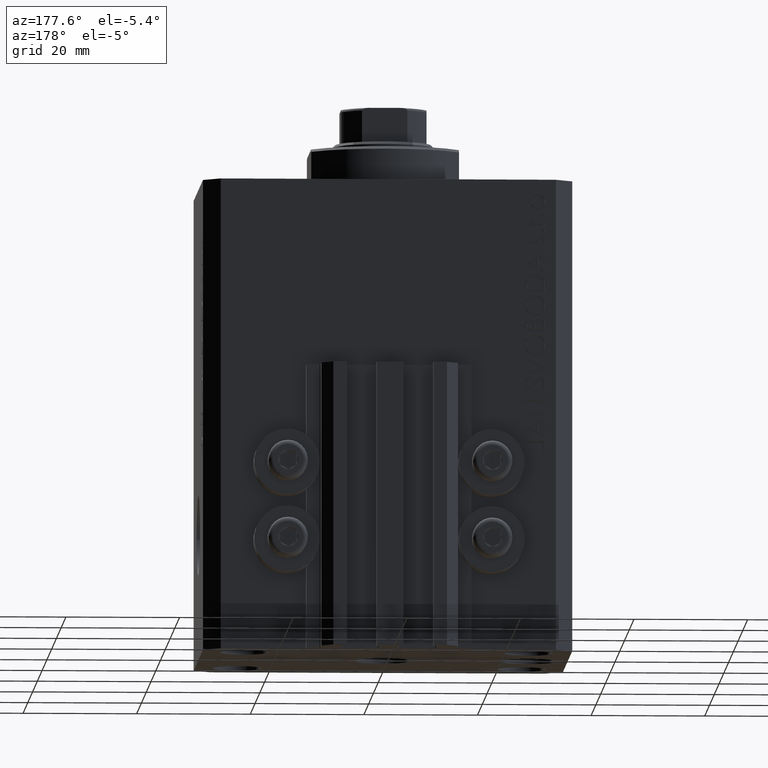
[diagram: clean part render]
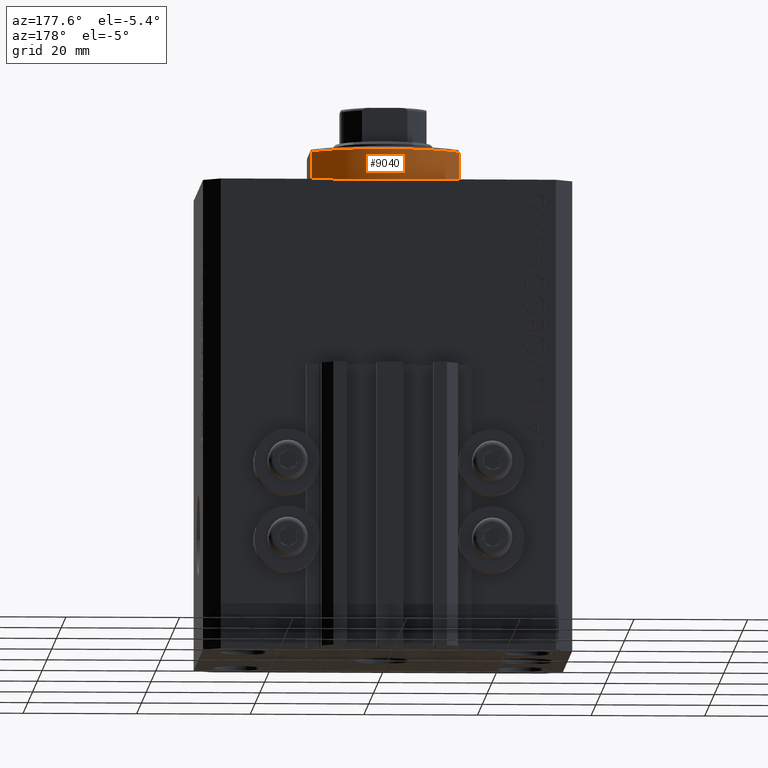
[diagram: same view with one face highlighted and labeled with its STEP entity id]
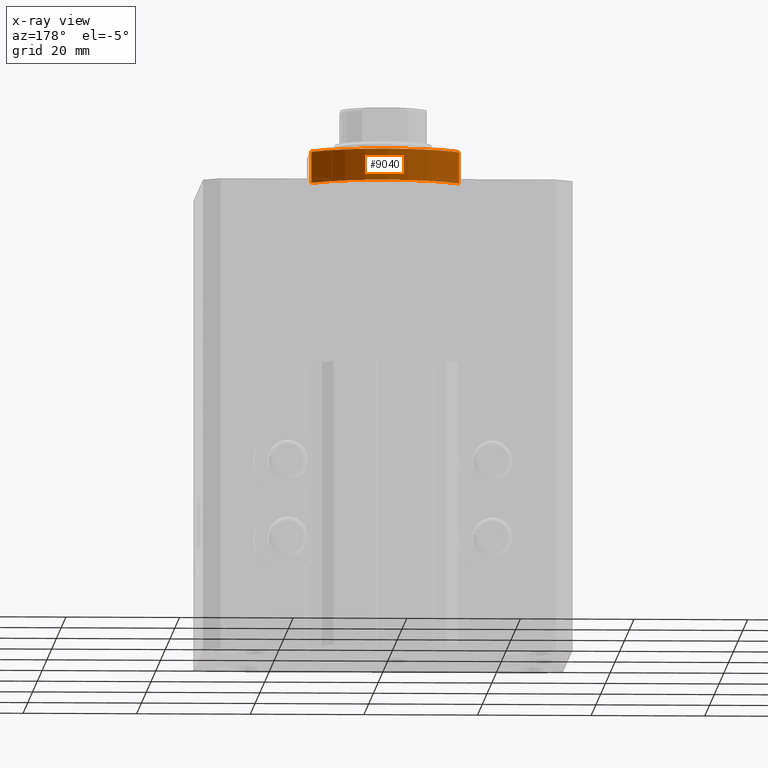
[diagram: x-ray of the same camera — body ghosted, the highlighted face saturated]
A machine part, auxiliary view. The second image highlights one B-rep face of the part: STEP entity #9040.
The next image is the same camera in x-ray: the body ghosted, the highlighted face saturated — about 0% of this face is hidden behind the body in this view.
In plain terms, the highlighted cylindrical surface (partial cylindrical patch) has radius 16 mm, axis along (0, 0, -1).
Its self-contained STEP definition (entity closure, byte-faithful):
#849 = VERTEX_POINT ( 'NONE', #37291 ) ;
#4982 = VECTOR ( 'NONE', #21790, 1000.000000000000000 ) ;
#5190 = CARTESIAN_POINT ( 'NONE',  ( 13.00000000000000000, 9.327379053088916905, -6.000000000000014211 ) ) ;
#5403 = DIRECTION ( 'NONE',  ( 0.000000000000000000, 0.000000000000000000, 1.000000000000000000 ) ) ;
#5992 = LINE ( 'NONE', #21317, #23861 ) ;
#7274 = ORIENTED_EDGE ( 'NONE', *, *, #43441, .T. ) ;
#9040 = ADVANCED_FACE ( 'NONE', ( #47244 ), #13880, .T. ) ;
#10523 = DIRECTION ( 'NONE',  ( -0.000000000000000000, -0.000000000000000000, 1.000000000000000000 ) ) ;
#13880 = CYLINDRICAL_SURFACE ( 'NONE', #25500, 16.00000000000000000 ) ;
#14584 = CIRCLE ( 'NONE', #28404, 16.00000000000000000 ) ;
#18256 = EDGE_CURVE ( 'NONE', #849, #37709, #14584, .T. ) ;
#18591 = EDGE_CURVE ( 'NONE', #23240, #849, #5992, .T. ) ;
#21317 = CARTESIAN_POINT ( 'NONE',  ( -13.00000000000000000, 9.327379053088813876, -6.500000000000000000 ) ) ;
#21555 = DIRECTION ( 'NONE',  ( -0.000000000000000000, -0.000000000000000000, 1.000000000000000000 ) ) ;
#21790 = DIRECTION ( 'NONE',  ( -0.000000000000000000, -0.000000000000000000, 1.000000000000000000 ) ) ;
#23240 = VERTEX_POINT ( 'NONE', #46406 ) ;
#23569 = CARTESIAN_POINT ( 'NONE',  ( 0.000000000000000000, 0.000000000000000000, -0.4999999999999995559 ) ) ;
#23637 = CARTESIAN_POINT ( 'NONE',  ( 13.00000000000000000, 9.327379053088815652, -0.4999999999999995559 ) ) ;
#23861 = VECTOR ( 'NONE', #10523, 1000.000000000000000 ) ;
#24096 = CARTESIAN_POINT ( 'NONE',  ( 0.000000000000000000, 0.000000000000000000, -6.000000000000023981 ) ) ;
#24925 = DIRECTION ( 'NONE',  ( 1.000000000000000000, 0.000000000000000000, 0.000000000000000000 ) ) ;
#25500 = AXIS2_PLACEMENT_3D ( 'NONE', #36213, #21555, #24925 ) ;
#27467 = AXIS2_PLACEMENT_3D ( 'NONE', #24096, #5403, #41882 ) ;
#28404 = AXIS2_PLACEMENT_3D ( 'NONE', #23569, #35095, #38226 ) ;
#31076 = EDGE_CURVE ( 'NONE', #32097, #37709, #43651, .T. ) ;
#32097 = VERTEX_POINT ( 'NONE', #5190 ) ;
#32291 = ORIENTED_EDGE ( 'NONE', *, *, #18256, .T. ) ;
#33082 = CARTESIAN_POINT ( 'NONE',  ( 13.00000000000000000, 9.327379053088813876, -6.500000000000000000 ) ) ;
#34112 = ORIENTED_EDGE ( 'NONE', *, *, #18591, .T. ) ;
#35095 = DIRECTION ( 'NONE',  ( -0.000000000000000000, -0.000000000000000000, -1.000000000000000000 ) ) ;
#36213 = CARTESIAN_POINT ( 'NONE',  ( 0.000000000000000000, 0.000000000000000000, -6.500000000000000000 ) ) ;
#37291 = CARTESIAN_POINT ( 'NONE',  ( -13.00000000000000000, 9.327379053088815652, -0.4999999999999995559 ) ) ;
#37709 = VERTEX_POINT ( 'NONE', #23637 ) ;
#38226 = DIRECTION ( 'NONE',  ( 1.000000000000000000, -8.881784197001252323E-16, 0.000000000000000000 ) ) ;
#41629 = EDGE_LOOP ( 'NONE', ( #44149, #7274, #34112, #32291 ) ) ;
#41882 = DIRECTION ( 'NONE',  ( -1.000000000000000000, 0.000000000000000000, 0.000000000000000000 ) ) ;
#43441 = EDGE_CURVE ( 'NONE', #32097, #23240, #45065, .T. ) ;
#43651 = LINE ( 'NONE', #33082, #4982 ) ;
#44149 = ORIENTED_EDGE ( 'NONE', *, *, #31076, .F. ) ;
#45065 = CIRCLE ( 'NONE', #27467, 16.00000000000000000 ) ;
#46406 = CARTESIAN_POINT ( 'NONE',  ( -13.00000000000000000, 9.327379053088916905, -6.000000000000014211 ) ) ;
#47244 = FACE_OUTER_BOUND ( 'NONE', #41629, .T. ) ;